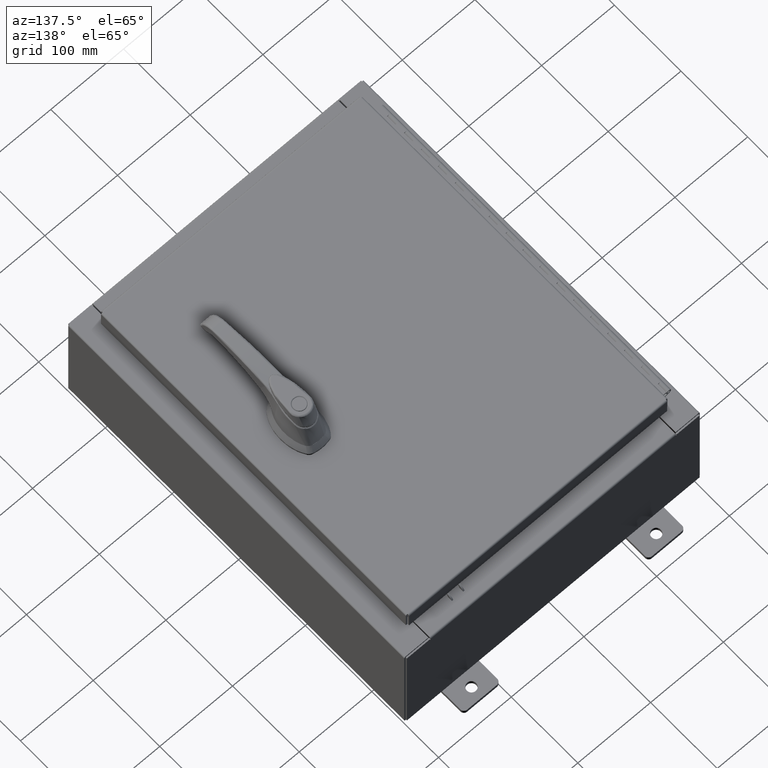
[diagram: clean part render]
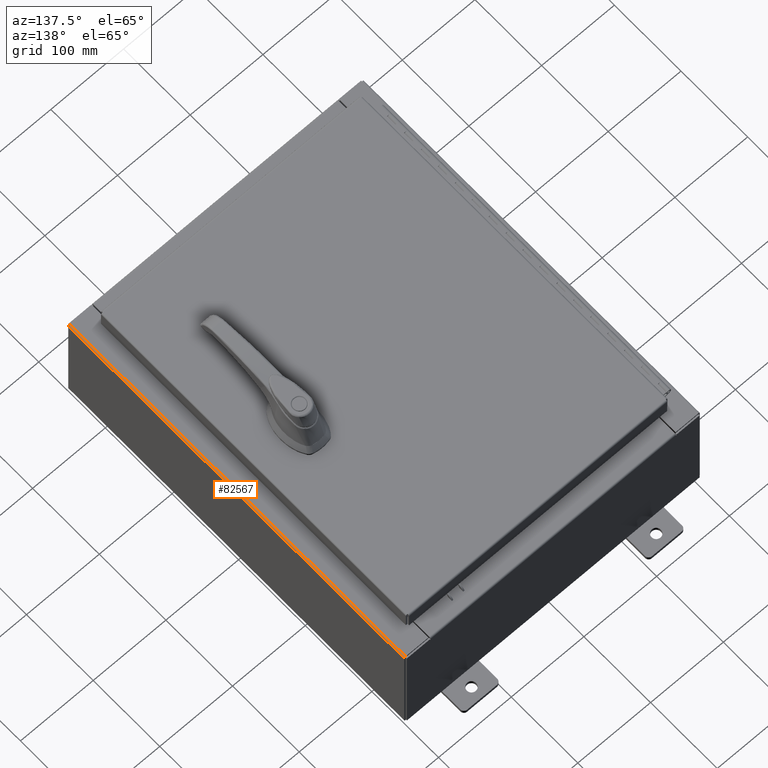
[diagram: same view with one face highlighted and labeled with its STEP entity id]
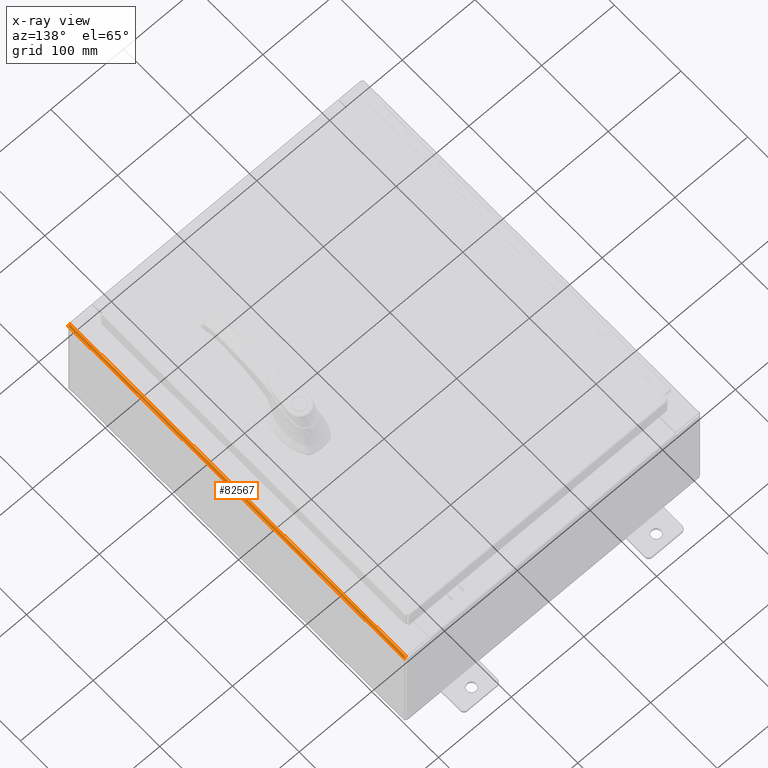
[diagram: x-ray of the same camera — body ghosted, the highlighted face saturated]
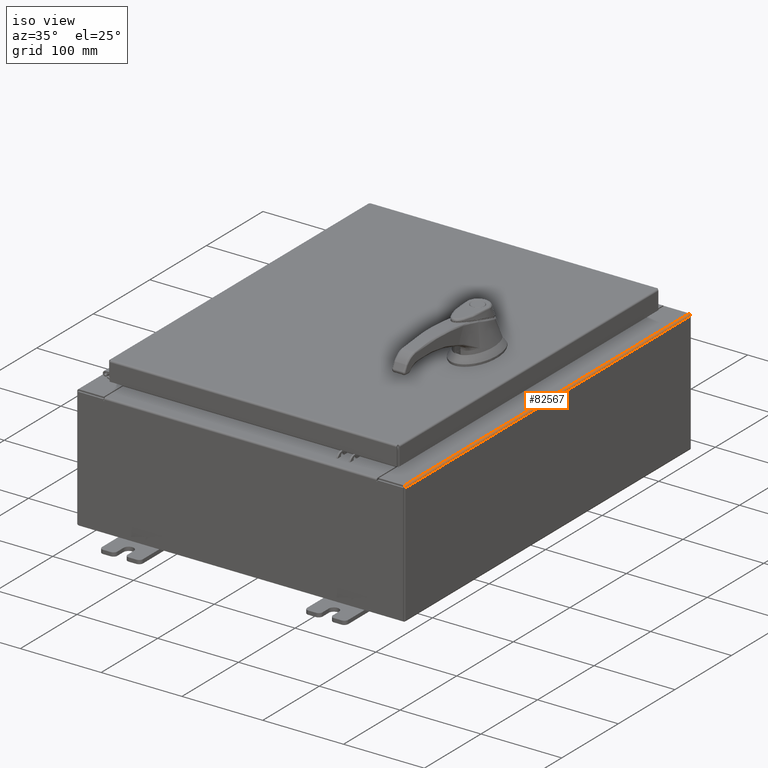
[diagram: same view with one face highlighted and labeled with its STEP entity id]
A machine part, auxiliary view. The second image highlights one B-rep face of the part: STEP entity #82567.
The next image is the same camera in x-ray: the body ghosted, the highlighted face saturated — about 0% of this face is hidden behind the body in this view.
A second angle (iso view) of the same face is appended — the face is thin or edge-on in the first view.
In plain terms, the highlighted cylindrical surface (edge-blend (fillet) strip) has radius 2.2276 mm, axis along (0, 1, 0).
Its self-contained STEP definition (entity closure, byte-faithful):
#205 = DIRECTION ( 'NONE',  ( 0.0000000000000000000, 1.000000000000000000, 0.0000000000000000000 ) ) ;
#1794 = EDGE_CURVE ( 'NONE', #51656, #19501, #102854, .T. ) ;
#11217 = DIRECTION ( 'NONE',  ( 0.0000000000000000000, 1.000000000000000000, 0.0000000000000000000 ) ) ;
#17137 = DIRECTION ( 'NONE',  ( 1.245996804407870000E-014, 0.0000000000000000000, 1.000000000000000000 ) ) ;
#19501 = VERTEX_POINT ( 'NONE', #106836 ) ;
#20964 = ORIENTED_EDGE ( 'NONE', *, *, #1794, .T. ) ;
#31406 = EDGE_CURVE ( 'NONE', #90672, #19501, #84973, .T. ) ;
#32737 = EDGE_CURVE ( 'NONE', #51656, #43670, #42712, .T. ) ;
#34873 = AXIS2_PLACEMENT_3D ( 'NONE', #67652, #205, #17137 ) ;
#39313 = ORIENTED_EDGE ( 'NONE', *, *, #103449, .F. ) ;
#42712 = CIRCLE ( 'NONE', #89995, 0.08770000000000026400 ) ;
#43670 = VERTEX_POINT ( 'NONE', #102194 ) ;
#44959 = DIRECTION ( 'NONE',  ( -0.0000000000000000000, -1.000000000000000000, -0.0000000000000000000 ) ) ;
#48929 = AXIS2_PLACEMENT_3D ( 'NONE', #95522, #44959, #104009 ) ;
#49076 = LINE ( 'NONE', #87590, #71580 ) ;
#50247 = DIRECTION ( 'NONE',  ( -0.0000000000000000000, -1.000000000000000000, -5.504816970095139000E-017 ) ) ;
#51656 = VERTEX_POINT ( 'NONE', #61012 ) ;
#52635 = VECTOR ( 'NONE', #50247, 39.37007874015748100 ) ;
#61012 = CARTESIAN_POINT ( 'NONE',  ( 7.912300000000022300, 9.925299999999991100, 5.925299999999999100 ) ) ;
#61734 = CARTESIAN_POINT ( 'NONE',  ( 7.912300000000022300, 9.925299999999991100, 5.837599999999999200 ) ) ;
#67652 = CARTESIAN_POINT ( 'NONE',  ( 7.912300000000022300, 9.925299999999992900, 5.837599999999999200 ) ) ;
#70253 = DIRECTION ( 'NONE',  ( 0.0000000000000000000, 0.0000000000000000000, 1.000000000000000000 ) ) ;
#71191 = ORIENTED_EDGE ( 'NONE', *, *, #32737, .F. ) ;
#71580 = VECTOR ( 'NONE', #96053, 39.37007874015748100 ) ;
#82567 = ADVANCED_FACE ( 'NONE', ( #98851 ), #90894, .T. ) ;
#82996 = EDGE_LOOP ( 'NONE', ( #39313, #71191, #20964, #104222 ) ) ;
#84973 = CIRCLE ( 'NONE', #48929, 0.08770000000000026400 ) ;
#87590 = CARTESIAN_POINT ( 'NONE',  ( 8.000000000000023100, 9.925299999999992900, 5.837599999999999200 ) ) ;
#89995 = AXIS2_PLACEMENT_3D ( 'NONE', #61734, #11217, #70253 ) ;
#90672 = VERTEX_POINT ( 'NONE', #102485 ) ;
#90894 = CYLINDRICAL_SURFACE ( 'NONE', #34873, 0.08770000000000026400 ) ;
#95522 = CARTESIAN_POINT ( 'NONE',  ( 7.912300000000022300, -9.925300000000001800, 5.837599999999999200 ) ) ;
#96053 = DIRECTION ( 'NONE',  ( -0.0000000000000000000, -1.000000000000000000, -0.0000000000000000000 ) ) ;
#98851 = FACE_OUTER_BOUND ( 'NONE', #82996, .T. ) ;
#102194 = CARTESIAN_POINT ( 'NONE',  ( 8.000000000000023100, 9.925299999999991100, 5.837599999999999200 ) ) ;
#102485 = CARTESIAN_POINT ( 'NONE',  ( 8.000000000000023100, -9.925300000000001800, 5.837599999999999200 ) ) ;
#102854 = LINE ( 'NONE', #109331, #52635 ) ;
#103449 = EDGE_CURVE ( 'NONE', #43670, #90672, #49076, .T. ) ;
#104009 = DIRECTION ( 'NONE',  ( 0.0000000000000000000, 0.0000000000000000000, 1.000000000000000000 ) ) ;
#104222 = ORIENTED_EDGE ( 'NONE', *, *, #31406, .F. ) ;
#106836 = CARTESIAN_POINT ( 'NONE',  ( 7.912300000000022300, -9.925300000000001800, 5.925299999999999100 ) ) ;
#109331 = CARTESIAN_POINT ( 'NONE',  ( 7.912300000000022300, -9.925300000000001800, 5.925299999999999100 ) ) ;